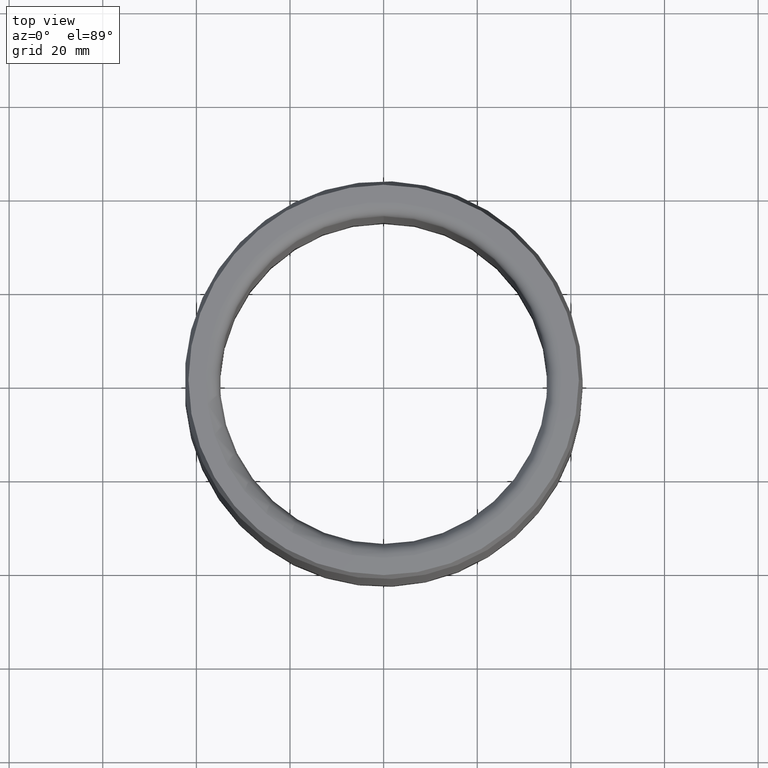
[diagram: clean part render]
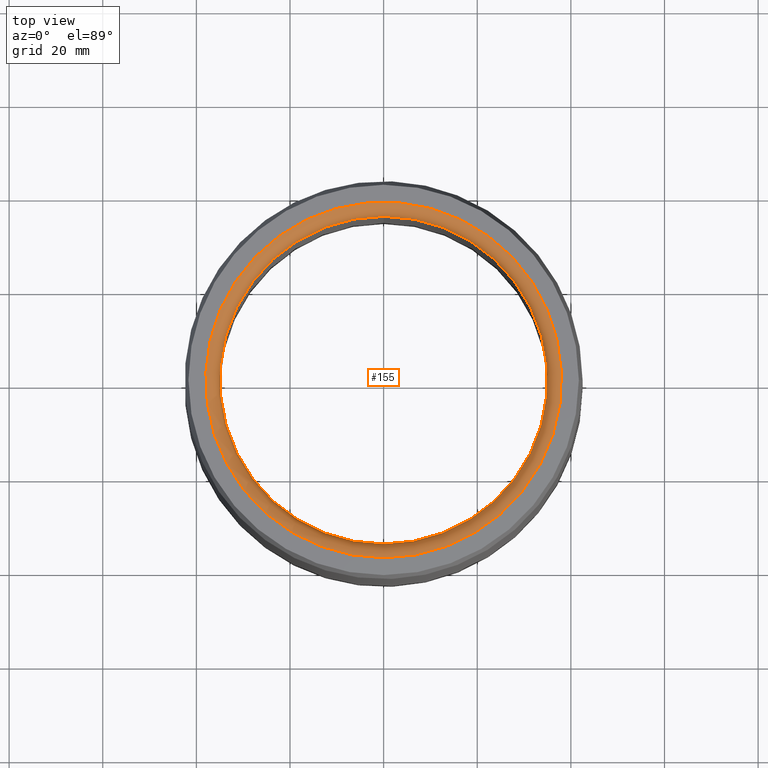
[diagram: same view with one face highlighted and labeled with its STEP entity id]
A machine part, top view. The second image highlights one B-rep face of the part: STEP entity #155.
In plain terms, the highlighted toroidal blend (fillet) surface has major radius 38 mm and minor (blend) radius 3 mm.
Its self-contained STEP definition (entity closure, byte-faithful):
#155=ADVANCED_FACE('',(#169,#170),#171,.T.);
#169=FACE_OUTER_BOUND('',#194,.T.);
#170=FACE_OUTER_BOUND('',#195,.T.);
#171=TOROIDAL_SURFACE('',#196,0.038,0.003);
#194=EDGE_LOOP('',(#222));
#195=EDGE_LOOP('',(#223));
#196=AXIS2_PLACEMENT_3D('',#224,#225,#226);
#222=ORIENTED_EDGE('',*,*,#256,.F.);
#223=ORIENTED_EDGE('',*,*,#254,.F.);
#224=CARTESIAN_POINT('',(0.0,5.93953697586466E-018,0.097));
#225=DIRECTION('',(0.0,6.12323399573677E-017,1.0));
#226=DIRECTION('',(0.0,-1.0,6.12323399573677E-017));
#254=EDGE_CURVE('',#264,#264,#265,.F.);
#256=EDGE_CURVE('',#268,#268,#269,.T.);
#264=VERTEX_POINT('',#280);
#265=CIRCLE('',#281,0.038);
#268=VERTEX_POINT('',#284);
#269=CIRCLE('',#285,0.035);
#280=CARTESIAN_POINT('',(0.0,-0.038,0.1));
#281=AXIS2_PLACEMENT_3D('',#298,#299,#300);
#284=CARTESIAN_POINT('',(0.0,-0.035,0.097));
#285=AXIS2_PLACEMENT_3D('',#304,#305,#306);
#298=CARTESIAN_POINT('',(0.0,6.12323399573677E-018,0.1));
#299=DIRECTION('',(0.0,6.12323399573677E-017,1.0));
#300=DIRECTION('',(0.0,-1.0,6.12323399573677E-017));
#304=CARTESIAN_POINT('',(0.0,5.93953697586466E-018,0.097));
#305=DIRECTION('',(0.0,6.12323399573677E-017,1.0));
#306=DIRECTION('',(0.0,-1.0,6.12323399573677E-017));